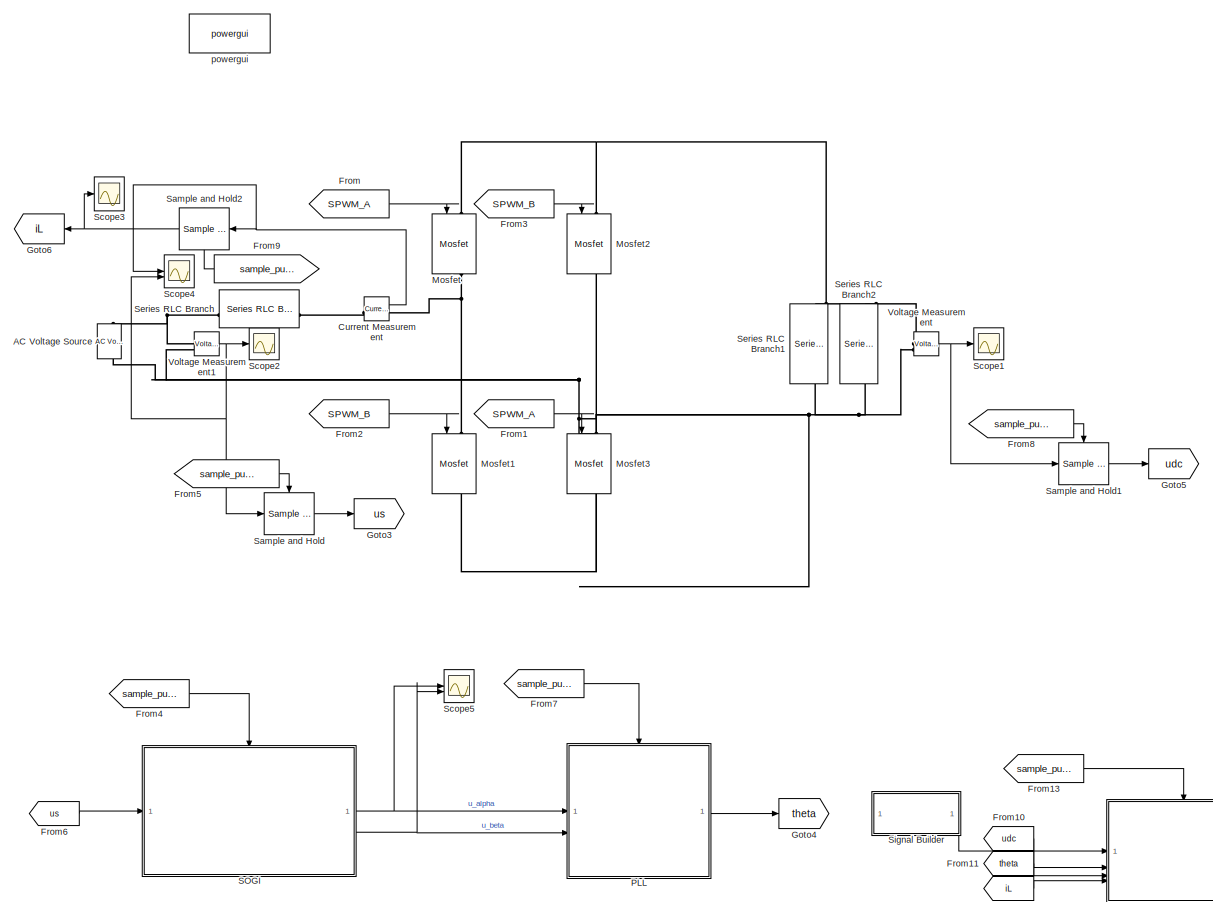
[diagram: root canvas - part 1/2, center side, full height]
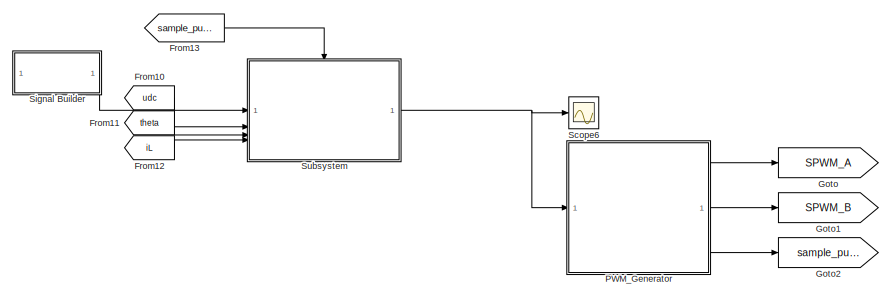
[diagram: root canvas - part 2/2, bottom right region]
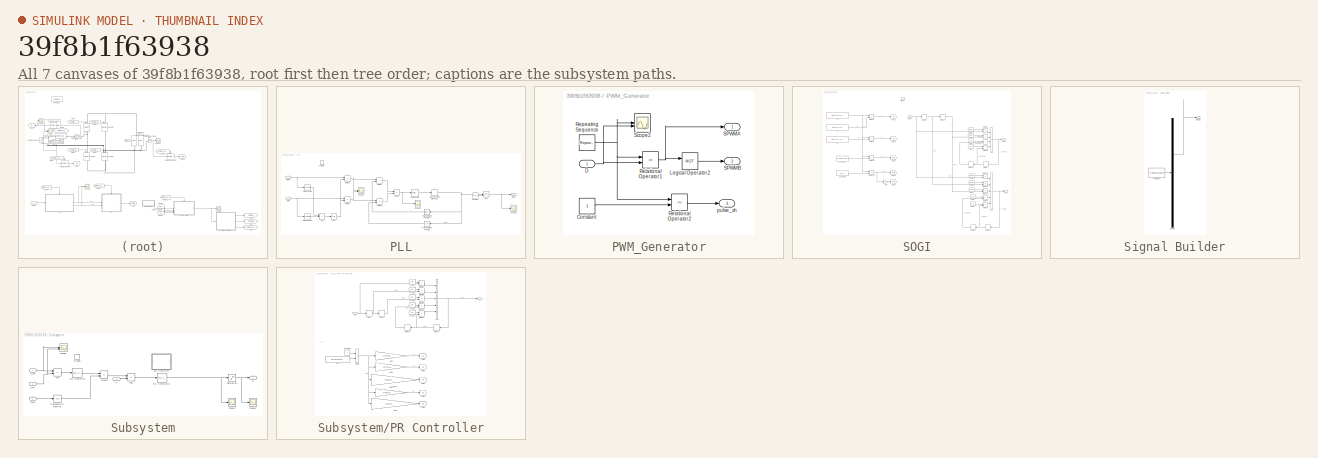
[diagram: thumbnail index - all 7 canvases of the model, root first then tree order]
MODEL slx_39f8b1f63938
KIND model
CONFIG AbsTol = auto
CONFIG EnableMultiTasking = off
CONFIG FixedStep = 1e-6
CONFIG MaxStep = 1e-8
CONFIG MinStep = auto
CONFIG RelTol = 1e-7
CONFIG SampleTimeConstraint = Unconstrained
CONFIG SolverName = VariableStepAuto
CONFIG StartTime = 0.0
CONFIG StopTime = 1
WORKSPACE source: mxarray member
WORKSPACE Kp = 1
WORKSPACE Kr = 10
WORKSPACE Ts = 2.5e-05
WORKSPACE wc = 6.28318530718
WORKSPACE wr = 314.159265359
BLOCK [Reference] AC Voltage Source  REF=spsACVoltageSourceLib/AC Voltage Source
  LibrarySourceBlock = sps_lib/Sources/AC Voltage Source
  SourceBlock = spsACVoltageSourceLib/AC Voltage Source
  SourceType = AC Voltage Source
BLOCK [Reference] Current Measurement  REF=spsCurrentMeasurementLib/Current Measurement
  LibrarySourceBlock = sps_lib/Sensors and Measurements/Current Measurement
  SourceBlock = spsCurrentMeasurementLib/Current Measurement
  SourceType = Current Measurement
  UserDataPersistent = on
BLOCK [From] From
  GotoTag = SPWM_A
BLOCK [From] From1
  GotoTag = SPWM_A
BLOCK [From] From10
  GotoTag = udc
BLOCK [From] From11
  GotoTag = theta
BLOCK [From] From12
  GotoTag = iL
BLOCK [From] From13
  GotoTag = sample_pulse
BLOCK [From] From2
  GotoTag = SPWM_B
BLOCK [From] From3
  GotoTag = SPWM_B
BLOCK [From] From4
  GotoTag = sample_pulse
BLOCK [From] From5
  GotoTag = sample_pulse
BLOCK [From] From6
  GotoTag = us
BLOCK [From] From7
  GotoTag = sample_pulse
BLOCK [From] From8
  GotoTag = sample_pulse
BLOCK [From] From9
  GotoTag = sample_pulse
  NameLocation = top
BLOCK [Goto] Goto
  GotoTag = SPWM_A
BLOCK [Goto] Goto1
  GotoTag = SPWM_B
BLOCK [Goto] Goto2
  GotoTag = sample_pulse
BLOCK [Goto] Goto3
  GotoTag = us
BLOCK [Goto] Goto4
  GotoTag = theta
BLOCK [Goto] Goto5
  GotoTag = udc
BLOCK [Goto] Goto6
  GotoTag = iL
  NameLocation = top
BLOCK [Reference] Mosfet  REF=spsMosfetLib/Mosfet
  LibrarySourceBlock = sps_lib/Power Electronics/Mosfet
  NameLocation = left
  SourceBlock = spsMosfetLib/Mosfet
  SourceType = Mosfet
BLOCK [Reference] Mosfet1  REF=spsMosfetLib/Mosfet
  LibrarySourceBlock = sps_lib/Power Electronics/Mosfet
  NameLocation = left
  SourceBlock = spsMosfetLib/Mosfet
  SourceType = Mosfet
BLOCK [Reference] Mosfet2  REF=spsMosfetLib/Mosfet
  LibrarySourceBlock = sps_lib/Power Electronics/Mosfet
  NameLocation = left
  SourceBlock = spsMosfetLib/Mosfet
  SourceType = Mosfet
BLOCK [Reference] Mosfet3  REF=spsMosfetLib/Mosfet
  LibrarySourceBlock = sps_lib/Power Electronics/Mosfet
  NameLocation = left
  SourceBlock = spsMosfetLib/Mosfet
  SourceType = Mosfet
BLOCK [SubSystem] PLL
  TreatAsAtomicUnit = on
BLOCK [Sum] PLL/Add
  IconShape = rectangular
  Inputs = +++
BLOCK [Sum] PLL/Add1
  IconShape = rectangular
  Inputs = -+
BLOCK [Constant] PLL/Constant
  Value = 2*pi
BLOCK [DiscreteIntegrator] PLL/Discrete-Time Integrator
  ICPrevOutput = DiscIntNeverNeededParam
  ICPrevScaledInput = DiscIntNeverNeededParam
  InitialConditionSetting = Auto
  SampleTime = -1
BLOCK [Product] PLL/Divide
  Inputs = */
BLOCK [Product] PLL/Divide1
  Inputs = */
BLOCK [Product] PLL/Divide2
  Inputs = **
BLOCK [Product] PLL/Divide3
  Inputs = **
BLOCK [Math] PLL/Math Function
  Operator = square
BLOCK [Math] PLL/Math Function1
  Operator = square
BLOCK [Math] PLL/Mod
  Operator = mod
BLOCK [Reference] PLL/PID Controller  REF=slpidlib/PID Controller
  LibrarySourceBlock = simulink/Continuous/PID Controller
  SourceBlock = slpidlib/PID Controller
  SourceType = PID 1dof
BLOCK [Scope] PLL/Scope1
  Floating = off
  NumInputPorts = 1
  ScopeSpecificationString = Simulink.scopes.TimeScopeBlockCfg('CurrentConfiguration', extmgr.ConfigurationSet(extmgr.Configuration('Core','General UI',true,'FigureColor',[1 1 1]),extmgr.Configuration('Core','Source UI',true),extmgr.Configuration('Sources','WiredSimulink',true,'DataLoggingVariableName','ScopeData4'),extmgr.Configuration('Visuals','Time Domain',true,'SerializedDisplays',{struct('MinYLimReal','-0.00633','MaxYLi...<+2303ch>
BLOCK [Scope] PLL/Scope2
  Floating = off
  NumInputPorts = 1
  ScopeSpecificationString = Simulink.scopes.TimeScopeBlockCfg('CurrentConfiguration', extmgr.ConfigurationSet(extmgr.Configuration('Core','General UI',true,'FigureColor',[1 1 1]),extmgr.Configuration('Core','Source UI',true),extmgr.Configuration('Sources','WiredSimulink',true,'DataLoggingVariableName','ScopeData5'),extmgr.Configuration('Visuals','Time Domain',true,'SerializedDisplays',{struct('MinYLimReal','-0.78516','MaxYLi...<+2633ch>
BLOCK [Scope] PLL/Scope4
  Floating = off
  NumInputPorts = 2
  ScopeSpecificationString = Simulink.scopes.TimeScopeBlockCfg('CurrentConfiguration', extmgr.ConfigurationSet(extmgr.Configuration('Core','General UI',true,'FigureColor',[1 1 1]),extmgr.Configuration('Core','Source UI',true),extmgr.Configuration('Sources','WiredSimulink',true,'DataLoggingVariableName','ScopeData3'),extmgr.Configuration('Visuals','Time Domain',true,'SerializedDisplays',{struct('MinYLimReal','-1.24465','MaxYLi...<+2311ch>
BLOCK [Sqrt] PLL/Sqrt
BLOCK [TriggerPort] PLL/Trigger
  StatesWhenEnabling = held
  VariantControl = (inherit)
BLOCK [Trigonometry] PLL/Trigonometric Function
  NameLocation = top
  Operator = cos
BLOCK [Trigonometry] PLL/Trigonometric Function1
  NameLocation = top
BLOCK [Inport] PLL/alpha
BLOCK [Inport] PLL/beta
  Port = 2
BLOCK [Outport] PLL/theta
BLOCK [SubSystem] PWM_Generator
BLOCK [Constant] PWM_Generator/Constant
  Value = -1
BLOCK [Inport] PWM_Generator/D
BLOCK [Logic] PWM_Generator/Logical Operator2
  AllPortsSameDT = off
  Operator = NOT
  OutDataTypeStr = boolean
BLOCK [RelationalOperator] PWM_Generator/Relational Operator1
  InputSameDT = off
  Operator = <=
  OutDataTypeStr = boolean
  RndMeth = Simplest
BLOCK [RelationalOperator] PWM_Generator/Relational Operator2
  InputSameDT = off
  Operator = <=
  OutDataTypeStr = boolean
  RndMeth = Simplest
BLOCK [Reference] PWM_Generator/Repeating Sequence  REF=simulink/Sources/Repeating
Sequence
  SourceBlock = simulink/Sources/Repeating\nSequence
  SourceType = Repeating table
BLOCK [Outport] PWM_Generator/SPWMA
BLOCK [Outport] PWM_Generator/SPWMB
  Port = 2
BLOCK [Scope] PWM_Generator/Scope2
  Floating = off
  NumInputPorts = 2
  ScopeSpecificationString = Simulink.scopes.TimeScopeBlockCfg('CurrentConfiguration', extmgr.ConfigurationSet(extmgr.Configuration('Core','General UI',true,'FigureColor',[1 1 1]),extmgr.Configuration('Core','Source UI',true),extmgr.Configuration('Sources','WiredSimulink',true,'DataLoggingVariableName','ScopeData2'),extmgr.Configuration('Visuals','Time Domain',true,'SerializedDisplays',{struct('MinYLimReal','-1.0706','MaxYLim...<+2712ch>
BLOCK [Outport] PWM_Generator/pulse_sh
  Port = 3
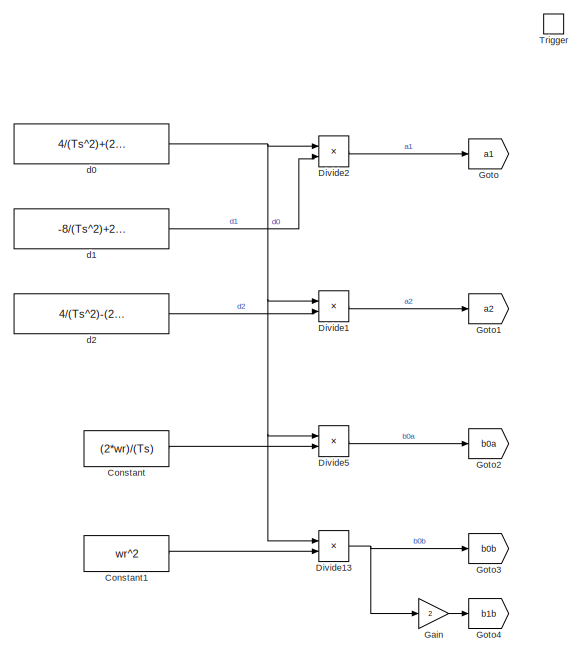
[diagram: SOGI - part 1/2, middle left region]
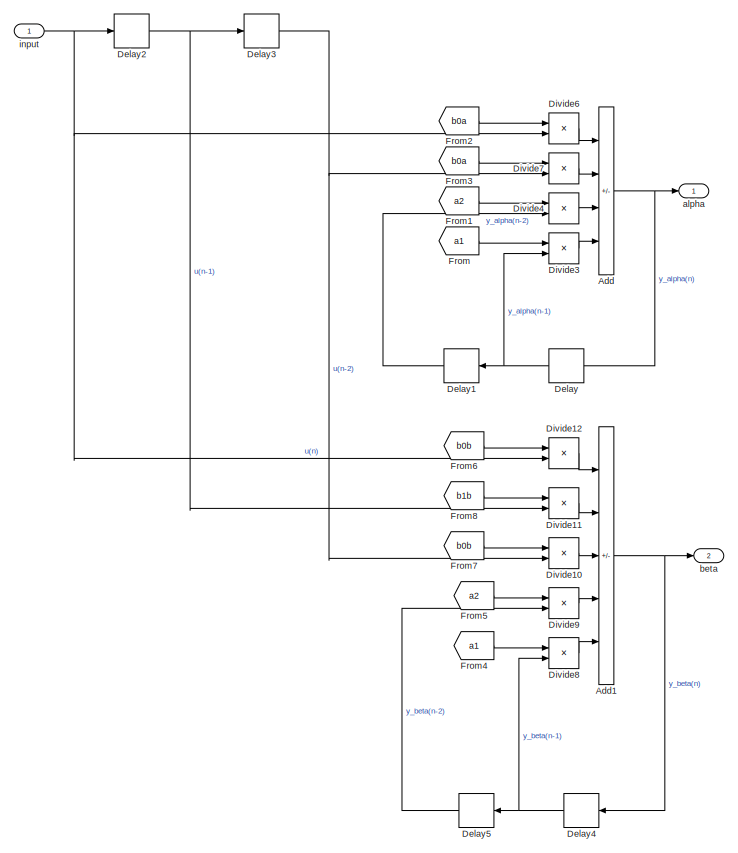
[diagram: SOGI - part 2/2, right side, full height]
BLOCK [SubSystem] SOGI
  TreatAsAtomicUnit = on
BLOCK [Sum] SOGI/Add
  IconShape = rectangular
  Inputs = +---
BLOCK [Sum] SOGI/Add1
  IconShape = rectangular
  Inputs = +++--
BLOCK [Constant] SOGI/Constant
  Value = (2*wr)/(Ts)
BLOCK [Constant] SOGI/Constant1
  Value = wr^2
BLOCK [Delay] SOGI/Delay
  DelayLength = 1
  InitialCondition = 0
  InputPortMap = u0
  NameLocation = top
BLOCK [Delay] SOGI/Delay1
  DelayLength = 1
  InitialCondition = 0
  InputPortMap = u0
  NameLocation = top
BLOCK [Delay] SOGI/Delay2
  DelayLength = 1
  InitialCondition = 0
  InputPortMap = u0
BLOCK [Delay] SOGI/Delay3
  DelayLength = 1
  InitialCondition = 0
  InputPortMap = u0
BLOCK [Delay] SOGI/Delay4
  DelayLength = 1
  InitialCondition = 0
  InputPortMap = u0
  NameLocation = top
BLOCK [Delay] SOGI/Delay5
  DelayLength = 1
  InitialCondition = 0
  InputPortMap = u0
  NameLocation = top
BLOCK [Product] SOGI/Divide1
  Inputs = /*
BLOCK [Product] SOGI/Divide10
  Inputs = **
BLOCK [Product] SOGI/Divide11
  Inputs = **
BLOCK [Product] SOGI/Divide12
  Inputs = **
BLOCK [Product] SOGI/Divide13
  Inputs = /*
BLOCK [Product] SOGI/Divide2
  Inputs = /*
BLOCK [Product] SOGI/Divide3
  Inputs = **
BLOCK [Product] SOGI/Divide4
  Inputs = **
BLOCK [Product] SOGI/Divide5
  Inputs = /*
BLOCK [Product] SOGI/Divide6
  Inputs = **
BLOCK [Product] SOGI/Divide7
  Inputs = **
BLOCK [Product] SOGI/Divide8
  Inputs = **
BLOCK [Product] SOGI/Divide9
  Inputs = **
BLOCK [From] SOGI/From
  GotoTag = a1
BLOCK [From] SOGI/From1
  GotoTag = a2
BLOCK [From] SOGI/From2
  GotoTag = b0a
BLOCK [From] SOGI/From3
  GotoTag = b0a
BLOCK [From] SOGI/From4
  GotoTag = a1
BLOCK [From] SOGI/From5
  GotoTag = a2
BLOCK [From] SOGI/From6
  GotoTag = b0b
BLOCK [From] SOGI/From7
  GotoTag = b0b
BLOCK [From] SOGI/From8
  GotoTag = b1b
BLOCK [Gain] SOGI/Gain
  Gain = 2
BLOCK [Goto] SOGI/Goto
  GotoTag = a1
BLOCK [Goto] SOGI/Goto1
  GotoTag = a2
BLOCK [Goto] SOGI/Goto2
  GotoTag = b0a
BLOCK [Goto] SOGI/Goto3
  GotoTag = b0b
BLOCK [Goto] SOGI/Goto4
  GotoTag = b1b
BLOCK [TriggerPort] SOGI/Trigger
  StatesWhenEnabling = held
  VariantControl = (inherit)
BLOCK [Outport] SOGI/alpha
BLOCK [Outport] SOGI/beta
  Port = 2
BLOCK [Constant] SOGI/d0
  Value = 4/(Ts^2)+(2*wr)/(Ts)+(wr^2)
BLOCK [Constant] SOGI/d1
  Value = -8/(Ts^2)+2*(wr^2)
BLOCK [Constant] SOGI/d2
  Value = 4/(Ts^2)-(2*wr)/(Ts)+(wr^2)
BLOCK [Inport] SOGI/input
BLOCK [Reference] Sample and Hold  REF=dspsigops/Sample
and Hold
  SourceBlock = dspsigops/Sample\nand Hold
  SourceType = Sample and Hold
BLOCK [Reference] Sample and Hold1  REF=dspsigops/Sample
and Hold
  SourceBlock = dspsigops/Sample\nand Hold
  SourceType = Sample and Hold
BLOCK [Reference] Sample and Hold2  REF=dspsigops/Sample
and Hold
  NameLocation = top
  SourceBlock = dspsigops/Sample\nand Hold
  SourceType = Sample and Hold
BLOCK [Scope] Scope1
  Floating = off
  NumInputPorts = 1
  ScopeSpecificationString = Simulink.scopes.TimeScopeBlockCfg('CurrentConfiguration', extmgr.ConfigurationSet(extmgr.Configuration('Core','General UI',true,'FigureColor',[1 1 1]),extmgr.Configuration('Core','Source UI',true),extmgr.Configuration('Sources','WiredSimulink',true,'DataLoggingVariableName','ScopeData1'),extmgr.Configuration('Visuals','Time Domain',true,'SerializedDisplays',{struct('MinYLimReal','29.47503','MaxYLi...<+2394ch>
BLOCK [Scope] Scope2
  Floating = off
  NumInputPorts = 1
  ScopeSpecificationString = Simulink.scopes.TimeScopeBlockCfg('CurrentConfiguration', extmgr.ConfigurationSet(extmgr.Configuration('Core','General UI',true,'FigureColor',[1 1 1]),extmgr.Configuration('Core','Source UI',true),extmgr.Configuration('Sources','WiredSimulink',true,'DataLoggingVariableName','ScopeData2'),extmgr.Configuration('Visuals','Time Domain',true,'SerializedDisplays',{struct('MinYLimReal','-42.42641','MaxYL...<+2695ch>
BLOCK [Scope] Scope3
  Floating = off
  NumInputPorts = 1
  ScopeSpecificationString = Simulink.scopes.TimeScopeBlockCfg('CurrentConfiguration', extmgr.ConfigurationSet(extmgr.Configuration('Core','General UI',true,'FigureColor',[1 1 1]),extmgr.Configuration('Core','Source UI',true),extmgr.Configuration('Sources','WiredSimulink',true,'DataLoggingVariableName','ScopeData4'),extmgr.Configuration('Visuals','Time Domain',true,'SerializedDisplays',{struct('MinYLimReal','-22.42518','MaxYL...<+2700ch>
BLOCK [Scope] Scope4
  Floating = off
  NumInputPorts = 2
  ScopeSpecificationString = Simulink.scopes.TimeScopeBlockCfg('CurrentConfiguration', extmgr.ConfigurationSet(extmgr.Configuration('Core','General UI',true,'FigureColor',[1 1 1]),extmgr.Configuration('Core','Source UI',true),extmgr.Configuration('Sources','WiredSimulink',true,'DataLoggingVariableName','ScopeData1'),extmgr.Configuration('Visuals','Time Domain',true,'SerializedDisplays',{struct('MinYLimReal','-21.2132','MaxYLi...<+2375ch>
BLOCK [Scope] Scope5
  Floating = off
  NumInputPorts = 2
  ScopeSpecificationString = Simulink.scopes.TimeScopeBlockCfg('CurrentConfiguration', extmgr.ConfigurationSet(extmgr.Configuration('Core','General UI',true,'FigureColor',[1 1 1]),extmgr.Configuration('Core','Source UI',true),extmgr.Configuration('Sources','WiredSimulink',true,'DataLoggingVariableName','ScopeData3'),extmgr.Configuration('Visuals','Time Domain',true,'SerializedDisplays',{struct('MinYLimReal','-18.41925','MaxYL...<+2688ch>
BLOCK [Scope] Scope6
  Floating = off
  NumInputPorts = 1
  ScopeSpecificationString = Simulink.scopes.TimeScopeBlockCfg('CurrentConfiguration', extmgr.ConfigurationSet(extmgr.Configuration('Core','General UI',true,'FigureColor',[1 1 1]),extmgr.Configuration('Core','Source UI',true),extmgr.Configuration('Sources','WiredSimulink',true,'DataLoggingVariableName','ScopeData2'),extmgr.Configuration('Visuals','Time Domain',true,'SerializedDisplays',{struct('MinYLimReal','-0.63664','MaxYLi...<+2375ch>
BLOCK [Reference] Series RLC Branch  REF=spsSeriesRLCBranchLib/Series RLC Branch
  LibrarySourceBlock = sps_lib/Passives/Series RLC Branch
  SourceBlock = spsSeriesRLCBranchLib/Series RLC Branch
  SourceType = Series RLC Branch
BLOCK [Reference] Series RLC Branch1  REF=spsSeriesRLCBranchLib/Series RLC Branch
  LibrarySourceBlock = sps_lib/Passives/Series RLC Branch
  NameLocation = left
  SourceBlock = spsSeriesRLCBranchLib/Series RLC Branch
  SourceType = Series RLC Branch
BLOCK [Reference] Series RLC Branch2  REF=spsSeriesRLCBranchLib/Series RLC Branch
  LibrarySourceBlock = sps_lib/Passives/Series RLC Branch
  NameLocation = left
  SourceBlock = spsSeriesRLCBranchLib/Series RLC Branch
  SourceType = Series RLC Branch
BLOCK [SubSystem] Signal Builder
  ClipboardFcn = sigbuilder_block('clipboard');
  CloseFcn = sigbuilder_block('close');
  ContinueFcn = sigbuilder_block('continue');
  CopyFcn = sigbuilder_block('copy');
  DeleteFcn = sigbuilder_block('delete');
  LoadFcn = sigbuilder_block('load');
  MaskHideContents = on
  ModelCloseFcn = sigbuilder_block('modelClose');
  NameChangeFcn = sigbuilder_block('namechange');
  OpenFcn = sigbuilder_block('open',[6 36 1428 674.25 ]);
  PauseFcn = sigbuilder_block('pause');
  PreSaveFcn = sigbuilder_block('preSave');
  StartFcn = sigbuilder_block('start');
  StopFcn = sigbuilder_block('stop');
  Tag = STV Subsys
BLOCK [Demux] Signal Builder/Demux
  DisplayOption = none
  Outputs = 1
  Tag = STV Demux
BLOCK [FromWorkspace] Signal Builder/FromWs
  Tag = STV FromWs
  VariableName = tuvar
BLOCK [Outport] Signal Builder/Signal 1
  Tag = STV Outport
BLOCK [SubSystem] Subsystem
BLOCK [Sum] Subsystem/Add
  IconShape = rectangular
  Inputs = +-
BLOCK [Sum] Subsystem/Add1
  IconShape = rectangular
  Inputs = -+
BLOCK [Outport] Subsystem/D
BLOCK [Reference] Subsystem/PID Controller  REF=slpidlib/PID Controller
  LibrarySourceBlock = simulink/Continuous/PID Controller
  SourceBlock = slpidlib/PID Controller
  SourceType = PID 1dof
BLOCK [Reference] Subsystem/PID Controller1  REF=slpidlib/PID Controller
  LibrarySourceBlock = simulink/Continuous/PID Controller
  SourceBlock = slpidlib/PID Controller
  SourceType = PID 1dof
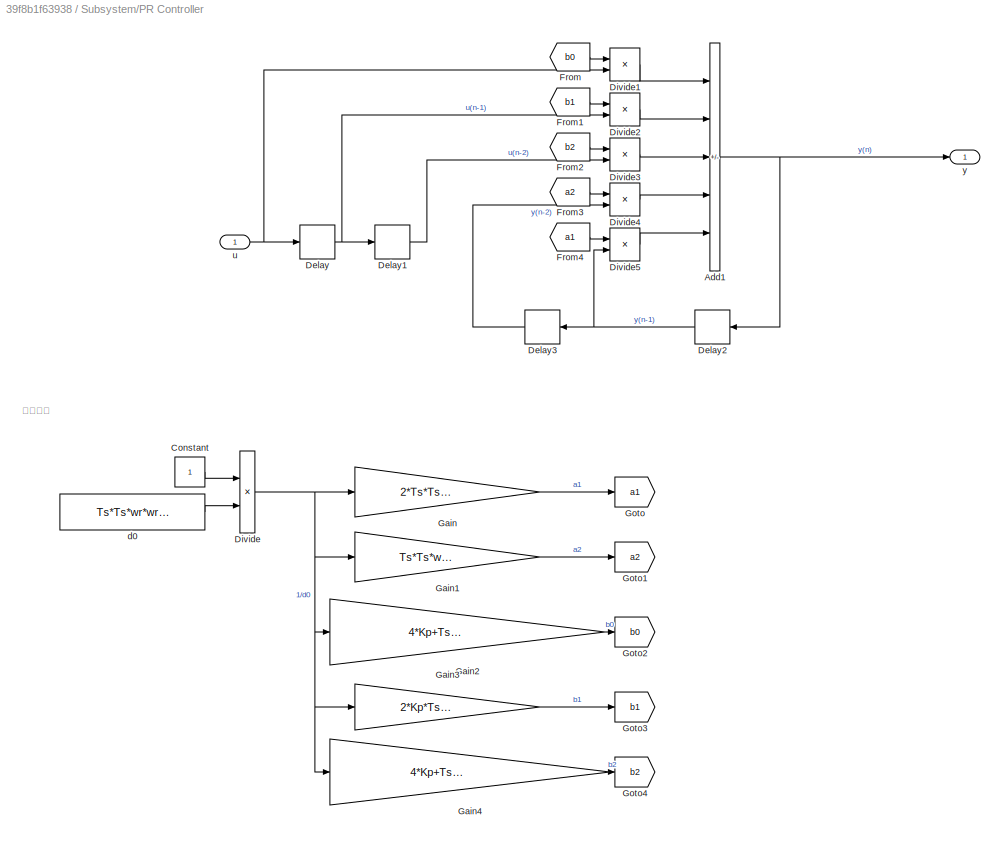
BLOCK [SubSystem] Subsystem/PR Controller
BLOCK [Sum] Subsystem/PR Controller/Add1
  IconShape = rectangular
  Inputs = +++--
BLOCK [Constant] Subsystem/PR Controller/Constant
BLOCK [Delay] Subsystem/PR Controller/Delay
  DelayLength = 1
  InitialCondition = 0
  InputPortMap = u0
BLOCK [Delay] Subsystem/PR Controller/Delay1
  DelayLength = 1
  InitialCondition = 0
  InputPortMap = u0
BLOCK [Delay] Subsystem/PR Controller/Delay2
  DelayLength = 1
  InitialCondition = 0
  InputPortMap = u0
  NameLocation = top
BLOCK [Delay] Subsystem/PR Controller/Delay3
  DelayLength = 1
  InitialCondition = 0
  InputPortMap = u0
  NameLocation = top
BLOCK [Product] Subsystem/PR Controller/Divide
  Inputs = */
BLOCK [Product] Subsystem/PR Controller/Divide1
  Inputs = **
BLOCK [Product] Subsystem/PR Controller/Divide2
  Inputs = **
BLOCK [Product] Subsystem/PR Controller/Divide3
  Inputs = **
BLOCK [Product] Subsystem/PR Controller/Divide4
  Inputs = **
BLOCK [Product] Subsystem/PR Controller/Divide5
  Inputs = **
BLOCK [From] Subsystem/PR Controller/From
  GotoTag = b0
BLOCK [From] Subsystem/PR Controller/From1
  GotoTag = b1
BLOCK [From] Subsystem/PR Controller/From2
  GotoTag = b2
BLOCK [From] Subsystem/PR Controller/From3
  GotoTag = a2
BLOCK [From] Subsystem/PR Controller/From4
  GotoTag = a1
BLOCK [Gain] Subsystem/PR Controller/Gain
  Gain = 2*Ts*Ts*wr*wr-8
BLOCK [Gain] Subsystem/PR Controller/Gain1
  Gain = Ts*Ts*wr*wr+4-4*Ts*wc
BLOCK [Gain] Subsystem/PR Controller/Gain2
  Gain = 4*Kp+Ts*Ts*Kp*wr*wr+4*Ts*Kp*wc+4*Ts*Kr*wc
BLOCK [Gain] Subsystem/PR Controller/Gain3
  Gain = 2*Kp*Ts*Ts*wr*wr - 8*Kp
BLOCK [Gain] Subsystem/PR Controller/Gain4
  Gain = 4*Kp+Ts*Ts*Kp*wr*wr-4*Ts*Kp*wc - 4.0*Ts*Kr*wc
BLOCK [Goto] Subsystem/PR Controller/Goto
  GotoTag = a1
BLOCK [Goto] Subsystem/PR Controller/Goto1
  GotoTag = a2
BLOCK [Goto] Subsystem/PR Controller/Goto2
  GotoTag = b0
BLOCK [Goto] Subsystem/PR Controller/Goto3
  GotoTag = b1
BLOCK [Goto] Subsystem/PR Controller/Goto4
  GotoTag = b2
BLOCK [Constant] Subsystem/PR Controller/d0
  Value = Ts*Ts*wr*wr+4*wc*Ts+4
BLOCK [Inport] Subsystem/PR Controller/u
BLOCK [Outport] Subsystem/PR Controller/y
BLOCK [Product] Subsystem/Product
BLOCK [Saturate] Subsystem/Saturation
  LowerLimit = -1
  UpperLimit = 1
BLOCK [Scope] Subsystem/Scope1
  Floating = off
  NumInputPorts = 1
  ScopeSpecificationString = Simulink.scopes.TimeScopeBlockCfg('CurrentConfiguration', extmgr.ConfigurationSet(extmgr.Configuration('Core','General UI',true,'FigureColor',[1 1 1]),extmgr.Configuration('Core','Source UI',true),extmgr.Configuration('Sources','WiredSimulink',true,'DataLoggingVariableName','ScopeData3'),extmgr.Configuration('Visuals','Time Domain',true,'SerializedDisplays',{struct('MinYLimReal','-0.25297','MaxYLi...<+2675ch>
BLOCK [Scope] Subsystem/Scope5
  Floating = off
  NumInputPorts = 2
  ScopeSpecificationString = Simulink.scopes.TimeScopeBlockCfg('CurrentConfiguration', extmgr.ConfigurationSet(extmgr.Configuration('Core','General UI',true,'FigureColor',[1 1 1]),extmgr.Configuration('Core','Source UI',true),extmgr.Configuration('Sources','WiredSimulink',true,'DataLoggingVariableName','ScopeData1'),extmgr.Configuration('Visuals','Time Domain',true,'SerializedDisplays',{struct('MinYLimReal','28.28626','MaxYLi...<+2686ch>
BLOCK [Scope] Subsystem/Scope6
  Floating = off
  NumInputPorts = 1
  ScopeSpecificationString = Simulink.scopes.TimeScopeBlockCfg('CurrentConfiguration', extmgr.ConfigurationSet(extmgr.Configuration('Core','General UI',true,'FigureColor',[1 1 1]),extmgr.Configuration('Core','Source UI',true),extmgr.Configuration('Sources','WiredSimulink',true,'DataLoggingVariableName','ScopeData2'),extmgr.Configuration('Visuals','Time Domain',true,'SerializedDisplays',{struct('MinYLimReal','-1.17076','MaxYLi...<+2677ch>
BLOCK [TriggerPort] Subsystem/Trigger
  PortDimensions = 1
  StatesWhenEnabling = held
  VariantControl = (inherit)
BLOCK [Trigonometry] Subsystem/Trigonometric Function
  Operator = cos
BLOCK [Inport] Subsystem/i_L
  Port = 4
BLOCK [Inport] Subsystem/theta
  Port = 3
BLOCK [Inport] Subsystem/u_dc
  Port = 2
BLOCK [Inport] Subsystem/u_ref
BLOCK [Reference] Voltage Measurement  REF=spsVoltageMeasurementLib/Voltage Measurement
  LibrarySourceBlock = sps_lib/Sensors and Measurements/Voltage Measurement
  SourceBlock = spsVoltageMeasurementLib/Voltage Measurement
  SourceType = Voltage Measurement
  UserDataPersistent = on
BLOCK [Reference] Voltage Measurement1  REF=spsVoltageMeasurementLib/Voltage Measurement
  LibrarySourceBlock = sps_lib/Sensors and Measurements/Voltage Measurement
  SourceBlock = spsVoltageMeasurementLib/Voltage Measurement
  SourceType = Voltage Measurement
  UserDataPersistent = on
BLOCK [Reference] powergui  REF=spspowerguiLib/powergui
  Priority = 1
  SourceBlock = spspowerguiLib/powergui
  SourceType = PSB option menu block
ANNOTATION Subsystem/PR Controller: 系数计算
NET Current Measurement:1 -> Sample and Hold2:1, Scope4:1
LINE From10:1 -> Subsystem:2
LINE From11:1 -> Subsystem:3
LINE From12:1 -> Subsystem:4
LINE From13:1 -> Subsystem:trigger
LINE From1:1 -> Mosfet3:1
LINE From2:1 -> Mosfet1:1
LINE From3:1 -> Mosfet2:1
LINE From4:1 -> SOGI:trigger
LINE From5:1 -> Sample and Hold:trigger
LINE From6:1 -> SOGI:1
LINE From7:1 -> PLL:trigger
LINE From8:1 -> Sample and Hold1:trigger
LINE From9:1 -> Sample and Hold2:trigger
LINE From:1 -> Mosfet:1
NET PLL/Add1:1 -> PLL/PID Controller:1, PLL/Scope1:1
LINE PLL/Add:1 -> PLL/Sqrt:1
LINE PLL/Constant:1 -> PLL/Mod:2
NET PLL/Discrete-Time Integrator:1 -> PLL/Mod:1, PLL/Trigonometric Function1:1, PLL/Trigonometric Function:1
NET PLL/Divide1:1 -> PLL/Divide2:1, PLL/Scope4:1
LINE PLL/Divide2:1 -> PLL/Add1:1
LINE PLL/Divide3:1 -> PLL/Add1:2
NET PLL/Divide:1 -> PLL/Divide3:1, PLL/Scope4:2
LINE PLL/Math Function1:1 -> PLL/Add:2
LINE PLL/Math Function:1 -> PLL/Add:1
NET PLL/Mod:1 -> PLL/Scope2:1, PLL/theta:1
LINE PLL/PID Controller:1 -> PLL/Discrete-Time Integrator:1
NET PLL/Sqrt:1 -> PLL/Divide1:2, PLL/Divide:2
LINE PLL/Trigonometric Function1:1 -> PLL/Divide2:2
LINE PLL/Trigonometric Function:1 -> PLL/Divide3:2
NET PLL/alpha:1 -> PLL/Divide1:1, PLL/Math Function:1
NET PLL/beta:1 -> PLL/Divide:1, PLL/Math Function1:1
LINE PLL:1 -> Goto4:1
LINE PWM_Generator/Constant:1 -> PWM_Generator/Relational Operator2:2
NET PWM_Generator/D:1 -> PWM_Generator/Relational Operator1:2, PWM_Generator/Scope2:2
LINE PWM_Generator/Logical Operator2:1 -> PWM_Generator/SPWMB:1
NET PWM_Generator/Relational Operator1:1 -> PWM_Generator/Logical Operator2:1, PWM_Generator/SPWMA:1
LINE PWM_Generator/Relational Operator2:1 -> PWM_Generator/pulse_sh:1
NET PWM_Generator/Repeating Sequence:1 -> PWM_Generator/Relational Operator1:1, PWM_Generator/Relational Operator2:1, PWM_Generator/Scope2:1
LINE PWM_Generator:1 -> Goto:1
LINE PWM_Generator:2 -> Goto1:1
LINE PWM_Generator:3 -> Goto2:1
NET SOGI/Add1:1 -> SOGI/Delay4:1, SOGI/beta:1
NET SOGI/Add:1 -> SOGI/Delay:1, SOGI/alpha:1
LINE SOGI/Constant1:1 -> SOGI/Divide13:2
LINE SOGI/Constant:1 -> SOGI/Divide5:2
LINE SOGI/Delay1:1 -> SOGI/Divide4:2
NET SOGI/Delay2:1 -> SOGI/Delay3:1, SOGI/Divide11:2
NET SOGI/Delay3:1 -> SOGI/Divide10:2, SOGI/Divide7:2
NET SOGI/Delay4:1 -> SOGI/Delay5:1, SOGI/Divide8:2
LINE SOGI/Delay5:1 -> SOGI/Divide9:2
NET SOGI/Delay:1 -> SOGI/Delay1:1, SOGI/Divide3:2
LINE SOGI/Divide10:1 -> SOGI/Add1:3
LINE SOGI/Divide11:1 -> SOGI/Add1:2
LINE SOGI/Divide12:1 -> SOGI/Add1:1
NET SOGI/Divide13:1 -> SOGI/Gain:1, SOGI/Goto3:1
LINE SOGI/Divide1:1 -> SOGI/Goto1:1
LINE SOGI/Divide2:1 -> SOGI/Goto:1
LINE SOGI/Divide3:1 -> SOGI/Add:4
LINE SOGI/Divide4:1 -> SOGI/Add:3
LINE SOGI/Divide5:1 -> SOGI/Goto2:1
LINE SOGI/Divide6:1 -> SOGI/Add:1
LINE SOGI/Divide7:1 -> SOGI/Add:2
LINE SOGI/Divide8:1 -> SOGI/Add1:5
LINE SOGI/Divide9:1 -> SOGI/Add1:4
LINE SOGI/From1:1 -> SOGI/Divide4:1
LINE SOGI/From2:1 -> SOGI/Divide6:1
LINE SOGI/From3:1 -> SOGI/Divide7:1
LINE SOGI/From4:1 -> SOGI/Divide8:1
LINE SOGI/From5:1 -> SOGI/Divide9:1
LINE SOGI/From6:1 -> SOGI/Divide12:1
LINE SOGI/From7:1 -> SOGI/Divide10:1
LINE SOGI/From8:1 -> SOGI/Divide11:1
LINE SOGI/From:1 -> SOGI/Divide3:1
LINE SOGI/Gain:1 -> SOGI/Goto4:1
NET SOGI/d0:1 -> SOGI/Divide13:1, SOGI/Divide1:1, SOGI/Divide2:1, SOGI/Divide5:1
LINE SOGI/d1:1 -> SOGI/Divide2:2
LINE SOGI/d2:1 -> SOGI/Divide1:2
NET SOGI/input:1 -> SOGI/Delay2:1, SOGI/Divide12:2, SOGI/Divide6:2
NET SOGI:1 -> PLL:1, Scope5:1
NET SOGI:2 -> PLL:2, Scope5:2
LINE Sample and Hold1:1 -> Goto5:1
NET Sample and Hold2:1 -> Goto6:1, Scope3:1
LINE Sample and Hold:1 -> Goto3:1
LINE Signal Builder:1 -> Subsystem:1
LINE Subsystem/Add1:1 -> Subsystem/PID Controller1:1
LINE Subsystem/Add:1 -> Subsystem/PID Controller:1
NET Subsystem/PID Controller1:1 -> Subsystem/Saturation:1, Subsystem/Scope1:1
LINE Subsystem/PID Controller:1 -> Subsystem/Product:1
NET Subsystem/PR Controller/Add1:1 -> Subsystem/PR Controller/Delay2:1, Subsystem/PR Controller/y:1
LINE Subsystem/PR Controller/Constant:1 -> Subsystem/PR Controller/Divide:1
LINE Subsystem/PR Controller/Delay1:1 -> Subsystem/PR Controller/Divide3:2
NET Subsystem/PR Controller/Delay2:1 -> Subsystem/PR Controller/Delay3:1, Subsystem/PR Controller/Divide5:2
LINE Subsystem/PR Controller/Delay3:1 -> Subsystem/PR Controller/Divide4:2
NET Subsystem/PR Controller/Delay:1 -> Subsystem/PR Controller/Delay1:1, Subsystem/PR Controller/Divide2:2
LINE Subsystem/PR Controller/Divide1:1 -> Subsystem/PR Controller/Add1:1
LINE Subsystem/PR Controller/Divide2:1 -> Subsystem/PR Controller/Add1:2
LINE Subsystem/PR Controller/Divide3:1 -> Subsystem/PR Controller/Add1:3
LINE Subsystem/PR Controller/Divide4:1 -> Subsystem/PR Controller/Add1:4
LINE Subsystem/PR Controller/Divide5:1 -> Subsystem/PR Controller/Add1:5
NET Subsystem/PR Controller/Divide:1 -> Subsystem/PR Controller/Gain1:1, Subsystem/PR Controller/Gain2:1, Subsystem/PR Controller/Gain3:1, Subsystem/PR Controller/Gain4:1, Subsystem/PR Controller/Gain:1
LINE Subsystem/PR Controller/From1:1 -> Subsystem/PR Controller/Divide2:1
LINE Subsystem/PR Controller/From2:1 -> Subsystem/PR Controller/Divide3:1
LINE Subsystem/PR Controller/From3:1 -> Subsystem/PR Controller/Divide4:1
LINE Subsystem/PR Controller/From4:1 -> Subsystem/PR Controller/Divide5:1
LINE Subsystem/PR Controller/From:1 -> Subsystem/PR Controller/Divide1:1
LINE Subsystem/PR Controller/Gain1:1 -> Subsystem/PR Controller/Goto1:1
LINE Subsystem/PR Controller/Gain2:1 -> Subsystem/PR Controller/Goto2:1
LINE Subsystem/PR Controller/Gain3:1 -> Subsystem/PR Controller/Goto3:1
LINE Subsystem/PR Controller/Gain4:1 -> Subsystem/PR Controller/Goto4:1
LINE Subsystem/PR Controller/Gain:1 -> Subsystem/PR Controller/Goto:1
LINE Subsystem/PR Controller/d0:1 -> Subsystem/PR Controller/Divide:2
NET Subsystem/PR Controller/u:1 -> Subsystem/PR Controller/Delay:1, Subsystem/PR Controller/Divide1:2
LINE Subsystem/Product:1 -> Subsystem/Add1:1
NET Subsystem/Saturation:1 -> Subsystem/D:1, Subsystem/Scope6:1
LINE Subsystem/Trigonometric Function:1 -> Subsystem/Product:2
LINE Subsystem/i_L:1 -> Subsystem/Add1:2
LINE Subsystem/theta:1 -> Subsystem/Trigonometric Function:1
NET Subsystem/u_dc:1 -> Subsystem/Add:2, Subsystem/Scope5:2
NET Subsystem/u_ref:1 -> Subsystem/Add:1, Subsystem/Scope5:1
NET Subsystem:1 -> PWM_Generator:1, Scope6:1
NET Voltage Measurement1:1 -> Sample and Hold:1, Scope2:1, Scope4:2
NET Voltage Measurement:1 -> Sample and Hold1:1, Scope1:1
PNET net1: AC Voltage Source:LConn1 -- Mosfet2:RConn1 -- Mosfet3:LConn1 -- Voltage Measurement1:LConn2
PNET net2: AC Voltage Source:RConn1 -- Series RLC Branch:LConn1 -- Voltage Measurement1:LConn1
PLINE Current Measurement:LConn1 -- Series RLC Branch:RConn1
PNET net3: Current Measurement:RConn1 -- Mosfet1:LConn1 -- Mosfet:RConn1
PNET net4: Mosfet1:RConn1 -- Mosfet3:RConn1 -- Series RLC Branch1:RConn1 -- Series RLC Branch2:RConn1 -- Voltage Measurement:LConn2
PNET net5: Mosfet2:LConn1 -- Mosfet:LConn1 -- Series RLC Branch1:LConn1 -- Series RLC Branch2:LConn1 -- Voltage Measurement:LConn1
note: NET lines group one-source signal fan-out (src -> all destinations, sorted); 1:1 wires keep LINE; PNET lines group multi-terminal physical nets as a canonical sorted terminal list (undirected conserving connections); 2-terminal nets keep the pairwise PLINE form
